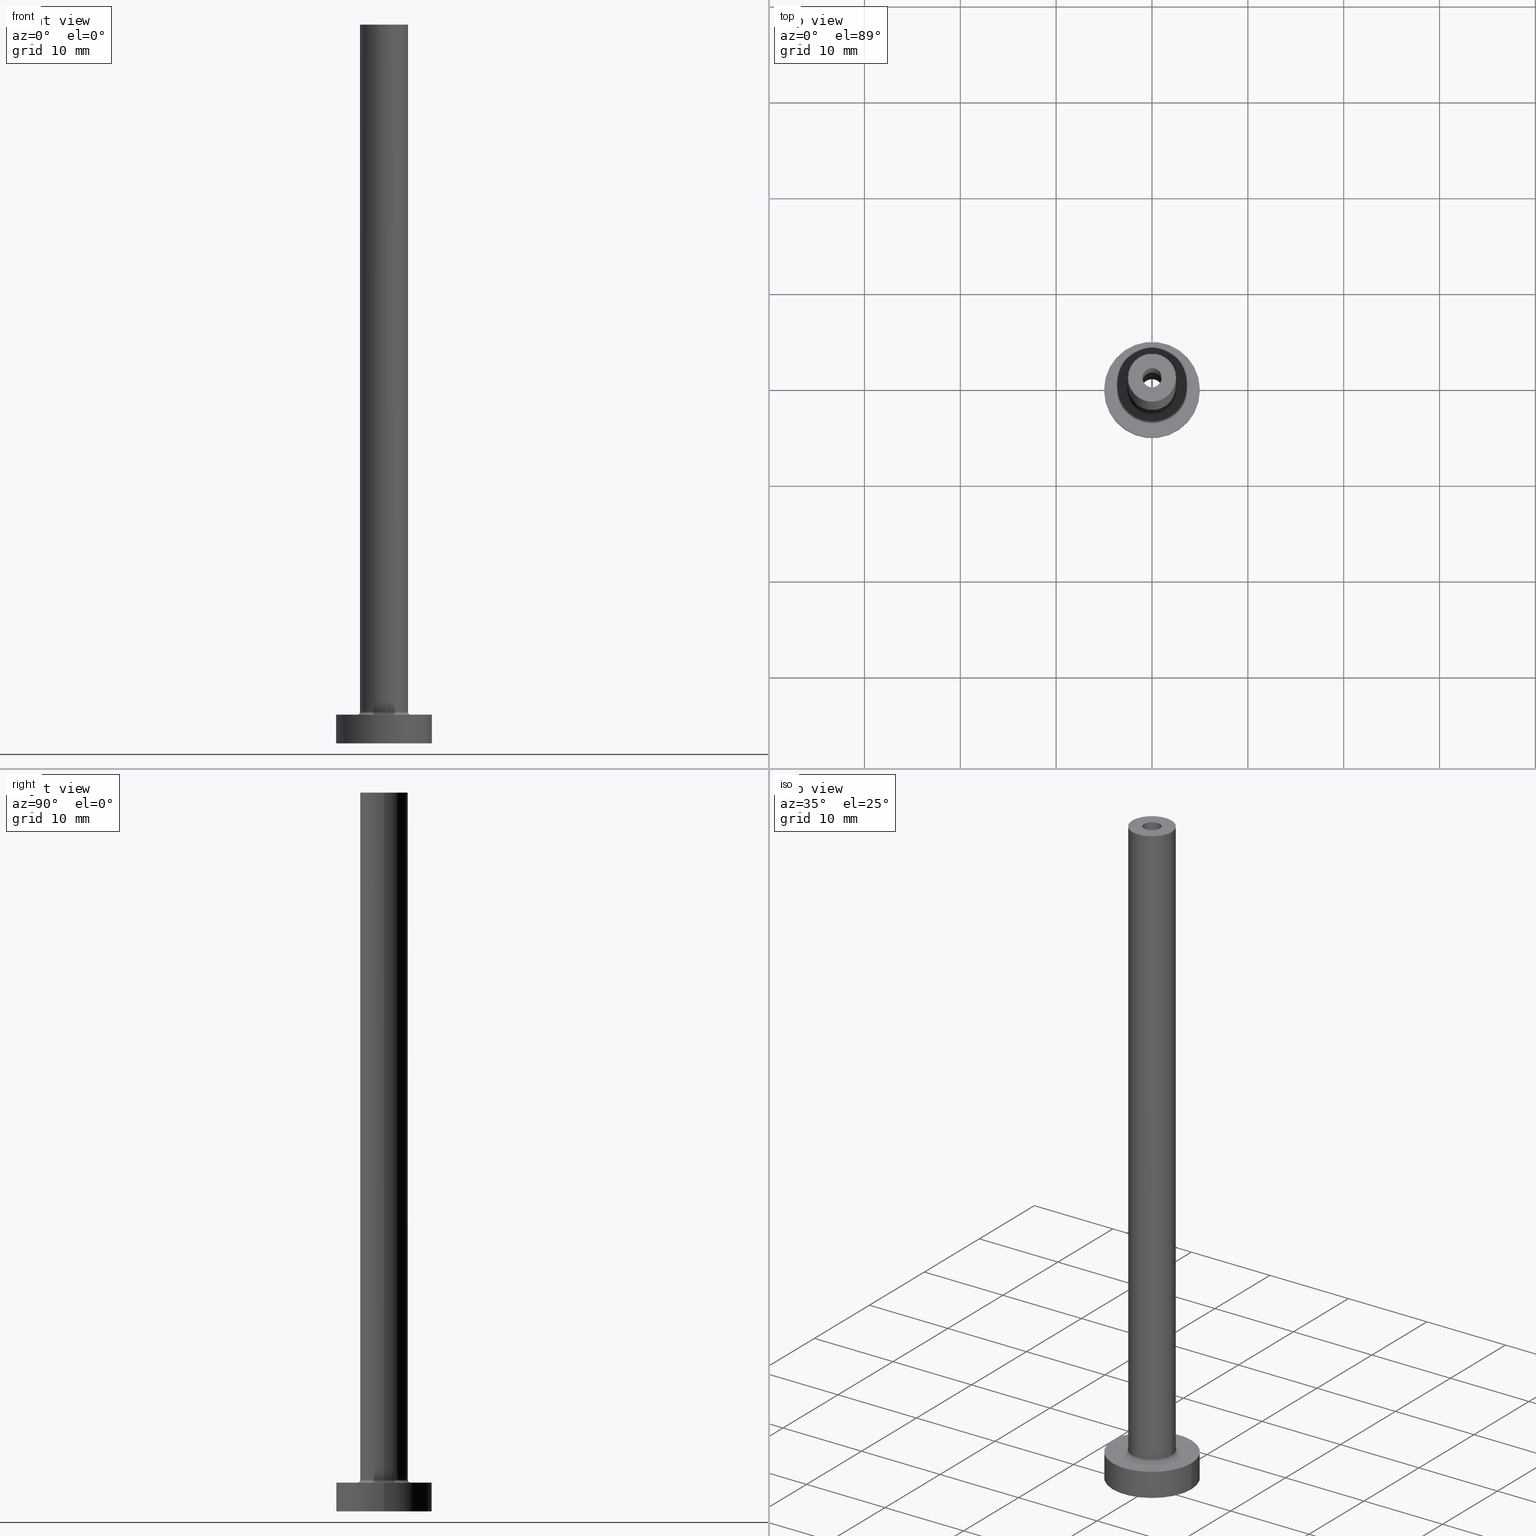
[diagram: canonical four-view strip — front | top / right | iso, engineering-drawing reading convention]
A machine part, canonical four-view strip (front | top / right | iso — engineering-drawing reading convention). The complete STEP part file that produces these views, byte-faithful:
ISO-10303-21;
HEADER;
FILE_DESCRIPTION (( 'STEP AP203' ),
    '1' );
FILE_NAME ('5a0d.STEP',
    '2025-12-03T11:45:13',
    ( '' ),
    ( '' ),
    'SwSTEP 2.0',
    'SolidWorks 2019',
    '' );
FILE_SCHEMA (( 'CONFIG_CONTROL_DESIGN' ));
ENDSEC;

DATA;
#1 = CARTESIAN_POINT ( 'NONE',  ( 0.000000000000000000, 0.000000000000000000, 40.00000000000000711 ) ) ;
#2 = AXIS2_PLACEMENT_3D ( 'NONE', #52, #61, #337 ) ;
#3 = CIRCLE ( 'NONE', #13, 2.500000000000000000 ) ;
#4 = CARTESIAN_POINT ( 'NONE',  ( 0.000000000000000000, 0.000000000000000000, 3.000000000000000000 ) ) ;
#5 = MANIFOLD_SOLID_BREP ( 'Odebrat vysunut�m4', #413 ) ;
#6 = CARTESIAN_POINT ( 'NONE',  ( -2.500000000000000000, 0.000000000000000000, 3.299999999999997158 ) ) ;
#7 = VERTEX_POINT ( 'NONE', #435 ) ;
#8 = DIRECTION ( 'NONE',  ( -0.000000000000000000, -0.000000000000000000, -1.000000000000000000 ) ) ;
#9 = VERTEX_POINT ( 'NONE', #10 ) ;
#10 = CARTESIAN_POINT ( 'NONE',  ( 5.000000000000000000, 6.123233995736766282E-16, 0.000000000000000000 ) ) ;
#11 = PRODUCT_RELATED_PRODUCT_CATEGORY ( 'detail', '', ( #142 ) ) ;
#12 = AXIS2_PLACEMENT_3D ( 'NONE', #94, #305, #438 ) ;
#13 = AXIS2_PLACEMENT_3D ( 'NONE', #141, #461, #257 ) ;
#14 = ORIENTED_EDGE ( 'NONE', *, *, #30, .T. ) ;
#15 = VERTEX_POINT ( 'NONE', #6 ) ;
#16 = APPLICATION_CONTEXT ( 'configuration controlled 3d designs of mechanical parts and assemblies' ) ;
#17 = PERSON_AND_ORGANIZATION ( #76, #425 ) ;
#18 = FACE_OUTER_BOUND ( 'NONE', #126, .T. ) ;
#19 = EDGE_LOOP ( 'NONE', ( #370, #190 ) ) ;
#20 = PERSON_AND_ORGANIZATION_ROLE ( 'creator' ) ;
#21 = CYLINDRICAL_SURFACE ( 'NONE', #265, 1.000000000000000000 ) ;
#22 = DATE_TIME_ROLE ( 'creation_date' ) ;
#23 = FACE_OUTER_BOUND ( 'NONE', #371, .T. ) ;
#24 = CALENDAR_DATE ( 2025, 3, 12 ) ;
#25 = DIRECTION ( 'NONE',  ( -0.000000000000000000, -0.000000000000000000, -1.000000000000000000 ) ) ;
#26 = CARTESIAN_POINT ( 'NONE',  ( 1.149999999999999911, 1.408343819019456028E-16, 43.25269119345811930 ) ) ;
#27 = LINE ( 'NONE', #377, #97 ) ;
#28 = AXIS2_PLACEMENT_3D ( 'NONE', #404, #204, #441 ) ;
#29 = CC_DESIGN_APPROVAL ( #310, ( #243 ) ) ;
#30 = EDGE_CURVE ( 'NONE', #228, #45, #106, .T. ) ;
#31 = CYLINDRICAL_SURFACE ( 'NONE', #113, 1.149999999999999911 ) ;
#32 = APPROVAL_ROLE ( '' ) ;
#33 = CARTESIAN_POINT ( 'NONE',  ( 0.000000000000000000, 0.000000000000000000, 3.000000000000000000 ) ) ;
#34 = ORIENTED_EDGE ( 'NONE', *, *, #375, .T. ) ;
#35 = FACE_OUTER_BOUND ( 'NONE', #86, .T. ) ;
#36 = VECTOR ( 'NONE', #166, 1000.000000000000000 ) ;
#37 = FACE_BOUND ( 'NONE', #365, .T. ) ;
#38 = CARTESIAN_POINT ( 'NONE',  ( -2.500000000000000000, 0.000000000000000000, 75.00000000000001421 ) ) ;
#39 = EDGE_CURVE ( 'NONE', #15, #352, #349, .T. ) ;
#40 = CARTESIAN_POINT ( 'NONE',  ( -1.000000000000000000, 0.000000000000000000, 75.00000000000001421 ) ) ;
#41 = ORIENTED_EDGE ( 'NONE', *, *, #115, .F. ) ;
#42 = EDGE_CURVE ( 'NONE', #352, #15, #210, .T. ) ;
#43 = CARTESIAN_POINT ( 'NONE',  ( -5.000000000000000000, 0.000000000000000000, 0.000000000000000000 ) ) ;
#44 = VERTEX_POINT ( 'NONE', #443 ) ;
#45 = VERTEX_POINT ( 'NONE', #409 ) ;
#46 = EDGE_LOOP ( 'NONE', ( #14, #34 ) ) ;
#47 = ORIENTED_EDGE ( 'NONE', *, *, #453, .F. ) ;
#48 = AXIS2_PLACEMENT_3D ( 'NONE', #71, #249, #354 ) ;
#49 = EDGE_LOOP ( 'NONE', ( #189, #335 ) ) ;
#50 = ORIENTED_EDGE ( 'NONE', *, *, #450, .F. ) ;
#51 = DATE_AND_TIME ( #205, #396 ) ;
#52 = CARTESIAN_POINT ( 'NONE',  ( 0.000000000000000000, 0.000000000000000000, 40.00000000000000711 ) ) ;
#53 = DIRECTION ( 'NONE',  ( 0.000000000000000000, 0.000000000000000000, 1.000000000000000000 ) ) ;
#54 = CARTESIAN_POINT ( 'NONE',  ( 0.000000000000000000, 0.000000000000000000, 75.00000000000001421 ) ) ;
#55 = PERSON_AND_ORGANIZATION ( #76, #425 ) ;
#56 = AXIS2_PLACEMENT_3D ( 'NONE', #54, #376, #380 ) ;
#57 = LINE ( 'NONE', #348, #412 ) ;
#58 = EDGE_LOOP ( 'NONE', ( #460, #186, #78, #399 ) ) ;
#59 = AXIS2_PLACEMENT_3D ( 'NONE', #114, #259, #427 ) ;
#60 = COORDINATED_UNIVERSAL_TIME_OFFSET ( 1, 0, .AHEAD. ) ;
#61 = DIRECTION ( 'NONE',  ( 0.000000000000000000, 0.000000000000000000, 1.000000000000000000 ) ) ;
#62 = COORDINATED_UNIVERSAL_TIME_OFFSET ( 1, 0, .AHEAD. ) ;
#63 = FACE_BOUND ( 'NONE', #230, .T. ) ;
#64 = EDGE_CURVE ( 'NONE', #264, #430, #299, .T. ) ;
#65 = CARTESIAN_POINT ( 'NONE',  ( 0.000000000000000000, 0.000000000000000000, 3.299999999999997158 ) ) ;
#66 = AXIS2_PLACEMENT_3D ( 'NONE', #319, #68, #290 ) ;
#67 = AXIS2_PLACEMENT_3D ( 'NONE', #188, #294, #291 ) ;
#68 = DIRECTION ( 'NONE',  ( 0.000000000000000000, 0.000000000000000000, -1.000000000000000000 ) ) ;
#69 = DATE_TIME_ROLE ( 'classification_date' ) ;
#70 = ORIENTED_EDGE ( 'NONE', *, *, #162, .T. ) ;
#71 = CARTESIAN_POINT ( 'NONE',  ( 0.000000000000000000, 0.000000000000000000, 3.000000000000000000 ) ) ;
#72 = DIRECTION ( 'NONE',  ( 1.000000000000000000, 0.000000000000000000, -0.000000000000000000 ) ) ;
#73 = ADVANCED_FACE ( 'NONE', ( #282 ), #201, .T. ) ;
#74 = CIRCLE ( 'NONE', #28, 2.500000000000000000 ) ;
#75 = DIRECTION ( 'NONE',  ( 0.000000000000000000, -1.000000000000000000, 0.000000000000000000 ) ) ;
#76 = PERSON ( 'NEUR�EN�', 'NEUR�EN�', 'NEUR�EN�', ('NEUR�EN�'), ('NEUR�EN�'), ('NEUR�EN�') ) ;
#77 = CARTESIAN_POINT ( 'NONE',  ( 0.000000000000000000, 0.000000000000000000, 75.00000000000001421 ) ) ;
#78 = ORIENTED_EDGE ( 'NONE', *, *, #42, .T. ) ;
#79 = EDGE_CURVE ( 'NONE', #228, #391, #314, .T. ) ;
#80 = CARTESIAN_POINT ( 'NONE',  ( 1.149999999999999911, 1.408343819019456028E-16, 0.000000000000000000 ) ) ;
#81 = ORIENTED_EDGE ( 'NONE', *, *, #132, .F. ) ;
#82 = AXIS2_PLACEMENT_3D ( 'NONE', #261, #312, #308 ) ;
#83 =( GEOMETRIC_REPRESENTATION_CONTEXT ( 3 ) GLOBAL_UNCERTAINTY_ASSIGNED_CONTEXT ( ( #437 ) ) GLOBAL_UNIT_ASSIGNED_CONTEXT ( ( #202, #442, #93 ) ) REPRESENTATION_CONTEXT ( 'NONE', 'WORKASPACE' ) );
#84 = DIRECTION ( 'NONE',  ( 1.000000000000000000, 0.000000000000000000, 0.000000000000000000 ) ) ;
#85 = EDGE_LOOP ( 'NONE', ( #366, #400, #164, #361 ) ) ;
#86 = EDGE_LOOP ( 'NONE', ( #184, #223, #120, #50 ) ) ;
#87 = ORIENTED_EDGE ( 'NONE', *, *, #30, .F. ) ;
#88 = EDGE_CURVE ( 'NONE', #253, #432, #234, .T. ) ;
#89 = PERSON_AND_ORGANIZATION ( #76, #425 ) ;
#90 = VECTOR ( 'NONE', #98, 1000.000000000000000 ) ;
#91 = DIRECTION ( 'NONE',  ( 1.000000000000000000, 0.000000000000000000, 0.000000000000000000 ) ) ;
#92 = ADVANCED_FACE ( 'NONE', ( #270 ), #21, .F. ) ;
#93 =( NAMED_UNIT ( * ) SI_UNIT ( $, .STERADIAN. ) SOLID_ANGLE_UNIT ( ) );
#94 = CARTESIAN_POINT ( 'NONE',  ( 0.000000000000000000, 0.000000000000000000, 3.000000000000000000 ) ) ;
#95 = DIRECTION ( 'NONE',  ( 0.000000000000000000, 0.000000000000000000, -1.000000000000000000 ) ) ;
#96 = PRODUCT_DEFINITION ( 'NEZN�M�', '', #243, #302 ) ;
#97 = VECTOR ( 'NONE', #346, 1000.000000000000000 ) ;
#98 = DIRECTION ( 'NONE',  ( -0.000000000000000000, -0.000000000000000000, -1.000000000000000000 ) ) ;
#99 = LOCAL_TIME ( 12, 45, 13.00000000000000000, #62 ) ;
#100 = PERSON_AND_ORGANIZATION_ROLE ( 'design_owner' ) ;
#101 = DIRECTION ( 'NONE',  ( -0.000000000000000000, -0.000000000000000000, -1.000000000000000000 ) ) ;
#102 = DATE_AND_TIME ( #455, #439 ) ;
#103 = ORIENTED_EDGE ( 'NONE', *, *, #375, .F. ) ;
#104 = CARTESIAN_POINT ( 'NONE',  ( 0.000000000000000000, 0.000000000000000000, 0.000000000000000000 ) ) ;
#105 = DIRECTION ( 'NONE',  ( 1.000000000000000000, 0.000000000000000000, 0.000000000000000000 ) ) ;
#106 = CIRCLE ( 'NONE', #227, 5.000000000000000000 ) ;
#107 = CARTESIAN_POINT ( 'NONE',  ( 0.000000000000000000, 0.000000000000000000, 3.000000000000000000 ) ) ;
#108 = COORDINATED_UNIVERSAL_TIME_OFFSET ( 1, 0, .AHEAD. ) ;
#109 = ORIENTED_EDGE ( 'NONE', *, *, #296, .T. ) ;
#110 = ADVANCED_FACE ( 'NONE', ( #63, #208 ), #245, .T. ) ;
#111 = DIRECTION ( 'NONE',  ( 1.000000000000000000, 0.000000000000000000, 0.000000000000000000 ) ) ;
#112 = CARTESIAN_POINT ( 'NONE',  ( 0.000000000000000000, 0.000000000000000000, 75.00000000000001421 ) ) ;
#113 = AXIS2_PLACEMENT_3D ( 'NONE', #422, #459, #382 ) ;
#114 = CARTESIAN_POINT ( 'NONE',  ( 0.000000000000000000, 0.000000000000000000, 3.299999999999997158 ) ) ;
#115 = EDGE_CURVE ( 'NONE', #159, #333, #27, .T. ) ;
#116 = DIRECTION ( 'NONE',  ( -0.000000000000000000, -0.000000000000000000, -1.000000000000000000 ) ) ;
#117 = DIRECTION ( 'NONE',  ( 1.000000000000000000, 0.000000000000000000, 0.000000000000000000 ) ) ;
#118 = ORIENTED_EDGE ( 'NONE', *, *, #127, .T. ) ;
#119 = DIRECTION ( 'NONE',  ( 1.000000000000000000, 0.000000000000000000, 0.000000000000000000 ) ) ;
#120 = ORIENTED_EDGE ( 'NONE', *, *, #88, .F. ) ;
#121 = AXIS2_PLACEMENT_3D ( 'NONE', #65, #386, #111 ) ;
#122 = EDGE_CURVE ( 'NONE', #15, #301, #272, .T. ) ;
#123 = AXIS2_PLACEMENT_3D ( 'NONE', #1, #263, #393 ) ;
#124 = ORIENTED_EDGE ( 'NONE', *, *, #42, .F. ) ;
#125 = EDGE_LOOP ( 'NONE', ( #194, #177 ) ) ;
#126 = EDGE_LOOP ( 'NONE', ( #103, #306, #191, #433 ) ) ;
#127 = EDGE_CURVE ( 'NONE', #333, #373, #146, .T. ) ;
#128 = CALENDAR_DATE ( 2025, 3, 12 ) ;
#129 = TOROIDAL_SURFACE ( 'NONE', #121, 2.799999999999999822, 0.2999999999999999889 ) ;
#130 = SECURITY_CLASSIFICATION ( '', '', #336 ) ;
#131 = LINE ( 'NONE', #406, #331 ) ;
#132 = EDGE_CURVE ( 'NONE', #264, #432, #57, .T. ) ;
#133 = COORDINATED_UNIVERSAL_TIME_OFFSET ( 1, 0, .AHEAD. ) ;
#134 = CARTESIAN_POINT ( 'NONE',  ( 0.000000000000000000, 0.000000000000000000, 40.00000000000000711 ) ) ;
#135 = DIRECTION ( 'NONE',  ( 1.000000000000000000, 0.000000000000000000, 0.000000000000000000 ) ) ;
#136 = LINE ( 'NONE', #444, #36 ) ;
#137 = CIRCLE ( 'NONE', #447, 2.799999999999999822 ) ;
#138 = AXIS2_PLACEMENT_3D ( 'NONE', #148, #317, #424 ) ;
#139 = DIRECTION ( 'NONE',  ( 0.000000000000000000, 0.000000000000000000, 1.000000000000000000 ) ) ;
#140 = APPROVAL_ROLE ( '' ) ;
#141 = CARTESIAN_POINT ( 'NONE',  ( 0.000000000000000000, 0.000000000000000000, 75.00000000000001421 ) ) ;
#142 = PRODUCT ( '5a0d', '5a0d', '', ( #200 ) ) ;
#143 = CARTESIAN_POINT ( 'NONE',  ( 0.000000000000000000, 0.000000000000000000, 40.00000000000000711 ) ) ;
#144 = EDGE_CURVE ( 'NONE', #44, #7, #74, .T. ) ;
#145 = SHAPE_DEFINITION_REPRESENTATION ( #417, #448 ) ;
#146 = CIRCLE ( 'NONE', #403, 1.149999999999999911 ) ;
#147 = DIRECTION ( 'NONE',  ( -0.000000000000000000, -0.000000000000000000, -1.000000000000000000 ) ) ;
#148 = CARTESIAN_POINT ( 'NONE',  ( 0.000000000000000000, 0.000000000000000000, 0.000000000000000000 ) ) ;
#149 = CARTESIAN_POINT ( 'NONE',  ( 1.149999999999999911, 1.408343819019456028E-16, 40.00000000000000711 ) ) ;
#150 = AXIS2_PLACEMENT_3D ( 'NONE', #134, #165, #91 ) ;
#151 = APPROVAL_PERSON_ORGANIZATION ( #278, #323, #338 ) ;
#152 = CARTESIAN_POINT ( 'NONE',  ( 1.000000000000000000, 1.224646799147353207E-16, 40.00000000000000711 ) ) ;
#153 = CARTESIAN_POINT ( 'NONE',  ( 0.000000000000000000, 0.000000000000000000, 3.000000000000000000 ) ) ;
#154 = CYLINDRICAL_SURFACE ( 'NONE', #378, 1.149999999999999911 ) ;
#155 = EDGE_LOOP ( 'NONE', ( #195, #330, #109, #215 ) ) ;
#156 = ADVANCED_FACE ( 'NONE', ( #344, #23 ), #167, .F. ) ;
#157 = EDGE_LOOP ( 'NONE', ( #47, #353, #297, #118 ) ) ;
#158 = AXIS2_PLACEMENT_3D ( 'NONE', #389, #75, #221 ) ;
#159 = VERTEX_POINT ( 'NONE', #309 ) ;
#160 = ORIENTED_EDGE ( 'NONE', *, *, #122, .F. ) ;
#161 = PERSON_AND_ORGANIZATION_ROLE ( 'classification_officer' ) ;
#162 = EDGE_CURVE ( 'NONE', #159, #408, #242, .T. ) ;
#163 = CYLINDRICAL_SURFACE ( 'NONE', #12, 5.000000000000000000 ) ;
#164 = ORIENTED_EDGE ( 'NONE', *, *, #359, .F. ) ;
#165 = DIRECTION ( 'NONE',  ( 0.000000000000000000, 0.000000000000000000, 1.000000000000000000 ) ) ;
#166 = DIRECTION ( 'NONE',  ( 0.000000000000000000, 0.000000000000000000, -1.000000000000000000 ) ) ;
#167 = PLANE ( 'NONE',  #219 ) ;
#168 = ADVANCED_FACE ( 'NONE', ( #18 ), #163, .T. ) ;
#169 = DATE_AND_TIME ( #24, #99 ) ;
#170 = DIRECTION ( 'NONE',  ( 0.000000000000000000, 0.000000000000000000, -1.000000000000000000 ) ) ;
#171 = DIRECTION ( 'NONE',  ( 1.000000000000000000, 0.000000000000000000, 0.000000000000000000 ) ) ;
#172 = CIRCLE ( 'NONE', #363, 2.799999999999999822 ) ;
#173 = CARTESIAN_POINT ( 'NONE',  ( 0.000000000000000000, 0.000000000000000000, 40.00000000000000711 ) ) ;
#174 = DIRECTION ( 'NONE',  ( 0.000000000000000000, 0.000000000000000000, 1.000000000000000000 ) ) ;
#175 = DIRECTION ( 'NONE',  ( -1.000000000000000000, 0.000000000000000000, 0.000000000000000000 ) ) ;
#176 = EDGE_CURVE ( 'NONE', #7, #352, #131, .T. ) ;
#177 = ORIENTED_EDGE ( 'NONE', *, *, #320, .T. ) ;
#178 = CYLINDRICAL_SURFACE ( 'NONE', #292, 5.000000000000000000 ) ;
#179 = TOROIDAL_SURFACE ( 'NONE', #59, 2.799999999999999822, 0.2999999999999999889 ) ;
#180 = DIRECTION ( 'NONE',  ( 1.000000000000000000, 0.000000000000000000, 0.000000000000000000 ) ) ;
#181 = PERSON_AND_ORGANIZATION ( #76, #425 ) ;
#182 = DIRECTION ( 'NONE',  ( -0.000000000000000000, -0.000000000000000000, -1.000000000000000000 ) ) ;
#183 = DIRECTION ( 'NONE',  ( -0.000000000000000000, -0.000000000000000000, -1.000000000000000000 ) ) ;
#184 = ORIENTED_EDGE ( 'NONE', *, *, #262, .T. ) ;
#185 = AXIS2_PLACEMENT_3D ( 'NONE', #104, #147, #423 ) ;
#186 = ORIENTED_EDGE ( 'NONE', *, *, #176, .T. ) ;
#187 = LOCAL_TIME ( 12, 45, 13.00000000000000000, #304 ) ;
#188 = CARTESIAN_POINT ( 'NONE',  ( 0.000000000000000000, 0.000000000000000000, 0.000000000000000000 ) ) ;
#189 = ORIENTED_EDGE ( 'NONE', *, *, #127, .F. ) ;
#190 = ORIENTED_EDGE ( 'NONE', *, *, #284, .T. ) ;
#191 = ORIENTED_EDGE ( 'NONE', *, *, #289, .T. ) ;
#192 = EDGE_CURVE ( 'NONE', #301, #303, #137, .T. ) ;
#193 = CIRCLE ( 'NONE', #211, 1.000000000000000000 ) ;
#194 = ORIENTED_EDGE ( 'NONE', *, *, #88, .T. ) ;
#195 = ORIENTED_EDGE ( 'NONE', *, *, #176, .F. ) ;
#196 = PERSON_AND_ORGANIZATION_ROLE ( 'creator' ) ;
#197 = ADVANCED_FACE ( 'NONE', ( #255 ), #178, .T. ) ;
#198 = DIRECTION ( 'NONE',  ( -1.000000000000000000, 1.224646799147353207E-16, 0.000000000000000000 ) ) ;
#199 = ORIENTED_EDGE ( 'NONE', *, *, #192, .F. ) ;
#200 = MECHANICAL_CONTEXT ( 'NONE', #16, 'mechanical' ) ;
#201 = CYLINDRICAL_SURFACE ( 'NONE', #340, 2.500000000000000000 ) ;
#202 =( LENGTH_UNIT ( ) NAMED_UNIT ( * ) SI_UNIT ( .MILLI., .METRE. ) );
#203 = CC_DESIGN_APPROVAL ( #286, ( #130 ) ) ;
#204 = DIRECTION ( 'NONE',  ( 0.000000000000000000, 0.000000000000000000, 1.000000000000000000 ) ) ;
#205 = CALENDAR_DATE ( 2025, 3, 12 ) ;
#206 = CARTESIAN_POINT ( 'NONE',  ( -2.799999999999999822, 3.429011037612588783E-16, 3.299999999999997158 ) ) ;
#207 = DIRECTION ( 'NONE',  ( -1.000000000000000000, 0.000000000000000000, 0.000000000000000000 ) ) ;
#208 = FACE_OUTER_BOUND ( 'NONE', #19, .T. ) ;
#209 = ADVANCED_FACE ( 'NONE', ( #37, #419 ), #216, .T. ) ;
#210 = CIRCLE ( 'NONE', #383, 2.500000000000000000 ) ;
#211 = AXIS2_PLACEMENT_3D ( 'NONE', #143, #285, #105 ) ;
#212 = DIRECTION ( 'NONE',  ( -0.000000000000000000, -0.000000000000000000, -1.000000000000000000 ) ) ;
#213 = ADVANCED_FACE ( 'NONE', ( #35 ), #217, .F. ) ;
#214 = LINE ( 'NONE', #351, #307 ) ;
#215 = ORIENTED_EDGE ( 'NONE', *, *, #39, .T. ) ;
#216 = PLANE ( 'NONE',  #48 ) ;
#217 = CYLINDRICAL_SURFACE ( 'NONE', #66, 1.000000000000000000 ) ;
#218 = AXIS2_PLACEMENT_3D ( 'NONE', #279, #139, #411 ) ;
#219 = AXIS2_PLACEMENT_3D ( 'NONE', #173, #339, #372 ) ;
#220 = AXIS2_PLACEMENT_3D ( 'NONE', #395, #360, #84 ) ;
#221 = DIRECTION ( 'NONE',  ( 0.000000000000000000, 0.000000000000000000, -1.000000000000000000 ) ) ;
#222 = DIRECTION ( 'NONE',  ( -1.000000000000000000, 0.000000000000000000, 0.000000000000000000 ) ) ;
#223 = ORIENTED_EDGE ( 'NONE', *, *, #132, .T. ) ;
#224 = ADVANCED_FACE ( 'NONE', ( #350 ), #129, .F. ) ;
#225 = CARTESIAN_POINT ( 'NONE',  ( -1.149999999999999911, 0.000000000000000000, 0.000000000000000000 ) ) ;
#226 = ORIENTED_EDGE ( 'NONE', *, *, #415, .F. ) ;
#227 = AXIS2_PLACEMENT_3D ( 'NONE', #153, #295, #117 ) ;
#228 = VERTEX_POINT ( 'NONE', #287 ) ;
#229 = CC_DESIGN_PERSON_AND_ORGANIZATION_ASSIGNMENT ( #347, #313, ( #243 ) ) ;
#230 = EDGE_LOOP ( 'NONE', ( #367, #248 ) ) ;
#231 = EDGE_LOOP ( 'NONE', ( #81, #327, #233, #456 ) ) ;
#232 = ADVANCED_FACE ( 'NONE', ( #324 ), #31, .F. ) ;
#233 = ORIENTED_EDGE ( 'NONE', *, *, #450, .T. ) ;
#234 = CIRCLE ( 'NONE', #150, 1.000000000000000000 ) ;
#235 = CC_DESIGN_APPROVAL ( #323, ( #96 ) ) ;
#236 = APPLICATION_PROTOCOL_DEFINITION ( 'international standard', 'config_control_design', 1994, #454 ) ;
#237 = DIRECTION ( 'NONE',  ( 1.000000000000000000, 0.000000000000000000, 0.000000000000000000 ) ) ;
#238 = DIRECTION ( 'NONE',  ( 1.224646799147353207E-16, 1.000000000000000000, -0.000000000000000000 ) ) ;
#239 = APPROVAL_DATE_TIME ( #51, #323 ) ;
#240 = ORIENTED_EDGE ( 'NONE', *, *, #453, .T. ) ;
#241 = DIRECTION ( 'NONE',  ( -1.000000000000000000, 0.000000000000000000, 0.000000000000000000 ) ) ;
#242 = CIRCLE ( 'NONE', #2, 1.149999999999999911 ) ;
#243 = PRODUCT_DEFINITION_FORMATION_WITH_SPECIFIED_SOURCE ( 'LIBOVOLN�', '', #142, .NOT_KNOWN. ) ;
#244 = EDGE_CURVE ( 'NONE', #373, #333, #369, .T. ) ;
#245 = PLANE ( 'NONE',  #56 ) ;
#246 = DIRECTION ( 'NONE',  ( -1.000000000000000000, 0.000000000000000000, 0.000000000000000000 ) ) ;
#247 = CC_DESIGN_DATE_AND_TIME_ASSIGNMENT ( #274, #69, ( #130 ) ) ;
#248 = ORIENTED_EDGE ( 'NONE', *, *, #64, .F. ) ;
#249 = DIRECTION ( 'NONE',  ( 0.000000000000000000, 0.000000000000000000, 1.000000000000000000 ) ) ;
#250 = ADVANCED_FACE ( 'NONE', ( #418, #256 ), #385, .F. ) ;
#251 = CC_DESIGN_SECURITY_CLASSIFICATION ( #130, ( #243 ) ) ;
#252 = CARTESIAN_POINT ( 'NONE',  ( 0.000000000000000000, 0.000000000000000000, 0.000000000000000000 ) ) ;
#253 = VERTEX_POINT ( 'NONE', #356 ) ;
#254 = ORIENTED_EDGE ( 'NONE', *, *, #359, .T. ) ;
#255 = FACE_OUTER_BOUND ( 'NONE', #364, .T. ) ;
#256 = FACE_OUTER_BOUND ( 'NONE', #397, .T. ) ;
#257 = DIRECTION ( 'NONE',  ( 1.000000000000000000, 0.000000000000000000, 0.000000000000000000 ) ) ;
#258 = VECTOR ( 'NONE', #374, 1000.000000000000000 ) ;
#259 = DIRECTION ( 'NONE',  ( 0.000000000000000000, 0.000000000000000000, 1.000000000000000000 ) ) ;
#260 = DIRECTION ( 'NONE',  ( 0.000000000000000000, 0.000000000000000000, -1.000000000000000000 ) ) ;
#261 = CARTESIAN_POINT ( 'NONE',  ( 0.000000000000000000, 0.000000000000000000, 3.299999999999997158 ) ) ;
#262 = EDGE_CURVE ( 'NONE', #430, #264, #318, .T. ) ;
#263 = DIRECTION ( 'NONE',  ( 0.000000000000000000, 0.000000000000000000, 1.000000000000000000 ) ) ;
#264 = VERTEX_POINT ( 'NONE', #321 ) ;
#265 = AXIS2_PLACEMENT_3D ( 'NONE', #277, #95, #241 ) ;
#266 = CC_DESIGN_PERSON_AND_ORGANIZATION_ASSIGNMENT ( #17, #161, ( #130 ) ) ;
#267 = ORIENTED_EDGE ( 'NONE', *, *, #325, .F. ) ;
#268 = ORIENTED_EDGE ( 'NONE', *, *, #162, .F. ) ;
#269 = ORIENTED_EDGE ( 'NONE', *, *, #192, .T. ) ;
#270 = FACE_OUTER_BOUND ( 'NONE', #231, .T. ) ;
#271 = ORIENTED_EDGE ( 'NONE', *, *, #293, .T. ) ;
#272 = CIRCLE ( 'NONE', #355, 0.2999999999999999334 ) ;
#273 = CIRCLE ( 'NONE', #67, 5.000000000000000000 ) ;
#274 = DATE_AND_TIME ( #128, #187 ) ;
#275 = CARTESIAN_POINT ( 'NONE',  ( 0.000000000000000000, 0.000000000000000000, 0.000000000000000000 ) ) ;
#276 = DATE_AND_TIME ( #342, #421 ) ;
#277 = CARTESIAN_POINT ( 'NONE',  ( 0.000000000000000000, 0.000000000000000000, 75.00000000000001421 ) ) ;
#278 = PERSON_AND_ORGANIZATION ( #76, #425 ) ;
#279 = CARTESIAN_POINT ( 'NONE',  ( 0.000000000000000000, 0.000000000000000000, 75.00000000000001421 ) ) ;
#280 = CIRCLE ( 'NONE', #158, 0.2999999999999999334 ) ;
#281 = AXIS2_PLACEMENT_3D ( 'NONE', #112, #174, #180 ) ;
#282 = FACE_OUTER_BOUND ( 'NONE', #155, .T. ) ;
#283 = DIRECTION ( 'NONE',  ( -0.000000000000000000, -0.000000000000000000, -1.000000000000000000 ) ) ;
#284 = EDGE_CURVE ( 'NONE', #7, #44, #3, .T. ) ;
#285 = DIRECTION ( 'NONE',  ( 0.000000000000000000, 0.000000000000000000, 1.000000000000000000 ) ) ;
#286 = APPROVAL ( #315, 'NEUR�EN�' ) ;
#287 = CARTESIAN_POINT ( 'NONE',  ( -5.000000000000000000, 0.000000000000000000, 3.000000000000000000 ) ) ;
#288 = DIRECTION ( 'NONE',  ( 1.000000000000000000, 0.000000000000000000, 0.000000000000000000 ) ) ;
#289 = EDGE_CURVE ( 'NONE', #9, #391, #341, .T. ) ;
#290 = DIRECTION ( 'NONE',  ( -1.000000000000000000, 0.000000000000000000, 0.000000000000000000 ) ) ;
#291 = DIRECTION ( 'NONE',  ( 1.000000000000000000, 0.000000000000000000, 0.000000000000000000 ) ) ;
#292 = AXIS2_PLACEMENT_3D ( 'NONE', #33, #212, #175 ) ;
#293 = EDGE_CURVE ( 'NONE', #352, #303, #280, .T. ) ;
#294 = DIRECTION ( 'NONE',  ( 0.000000000000000000, 0.000000000000000000, 1.000000000000000000 ) ) ;
#295 = DIRECTION ( 'NONE',  ( 0.000000000000000000, 0.000000000000000000, 1.000000000000000000 ) ) ;
#296 = EDGE_CURVE ( 'NONE', #44, #15, #358, .T. ) ;
#297 = ORIENTED_EDGE ( 'NONE', *, *, #115, .T. ) ;
#298 = ORIENTED_EDGE ( 'NONE', *, *, #289, .F. ) ;
#299 = CIRCLE ( 'NONE', #218, 1.000000000000000000 ) ;
#300 = APPROVAL_PERSON_ORGANIZATION ( #345, #310, #140 ) ;
#301 = VERTEX_POINT ( 'NONE', #316 ) ;
#302 = DESIGN_CONTEXT ( 'detailed design', #454, 'design' ) ;
#303 = VERTEX_POINT ( 'NONE', #452 ) ;
#304 = COORDINATED_UNIVERSAL_TIME_OFFSET ( 1, 0, .AHEAD. ) ;
#305 = DIRECTION ( 'NONE',  ( -0.000000000000000000, -0.000000000000000000, -1.000000000000000000 ) ) ;
#306 = ORIENTED_EDGE ( 'NONE', *, *, #325, .T. ) ;
#307 = VECTOR ( 'NONE', #183, 1000.000000000000000 ) ;
#308 = DIRECTION ( 'NONE',  ( 1.000000000000000000, 0.000000000000000000, 0.000000000000000000 ) ) ;
#309 = CARTESIAN_POINT ( 'NONE',  ( -1.149999999999999911, 0.000000000000000000, 40.00000000000000711 ) ) ;
#310 = APPROVAL ( #410, 'NEUR�EN�' ) ;
#311 = APPROVAL_DATE_TIME ( #169, #310 ) ;
#312 = DIRECTION ( 'NONE',  ( 0.000000000000000000, 0.000000000000000000, 1.000000000000000000 ) ) ;
#313 = PERSON_AND_ORGANIZATION_ROLE ( 'design_supplier' ) ;
#314 = LINE ( 'NONE', #451, #90 ) ;
#315 = APPROVAL_STATUS ( 'not_yet_approved' ) ;
#316 = CARTESIAN_POINT ( 'NONE',  ( -2.799999999999999822, 3.429011037612589276E-16, 2.999999999999998668 ) ) ;
#317 = DIRECTION ( 'NONE',  ( 0.000000000000000000, 0.000000000000000000, 1.000000000000000000 ) ) ;
#318 = CIRCLE ( 'NONE', #281, 1.000000000000000000 ) ;
#319 = CARTESIAN_POINT ( 'NONE',  ( 0.000000000000000000, 0.000000000000000000, 75.00000000000001421 ) ) ;
#320 = EDGE_CURVE ( 'NONE', #432, #253, #193, .T. ) ;
#321 = CARTESIAN_POINT ( 'NONE',  ( 1.000000000000000000, 1.224646799147353207E-16, 75.00000000000001421 ) ) ;
#322 = APPROVAL_DATE_TIME ( #102, #286 ) ;
#323 = APPROVAL ( #402, 'NEUR�EN�' ) ;
#324 = FACE_OUTER_BOUND ( 'NONE', #394, .T. ) ;
#325 = EDGE_CURVE ( 'NONE', #45, #9, #214, .T. ) ;
#326 = CARTESIAN_POINT ( 'NONE',  ( 2.500000000000000000, 3.061616997868383141E-16, 3.299999999999997158 ) ) ;
#327 = ORIENTED_EDGE ( 'NONE', *, *, #64, .T. ) ;
#328 = FACE_OUTER_BOUND ( 'NONE', #343, .T. ) ;
#329 = ORIENTED_EDGE ( 'NONE', *, *, #244, .T. ) ;
#330 = ORIENTED_EDGE ( 'NONE', *, *, #144, .F. ) ;
#331 = VECTOR ( 'NONE', #457, 1000.000000000000000 ) ;
#332 = ORIENTED_EDGE ( 'NONE', *, *, #415, .T. ) ;
#333 = VERTEX_POINT ( 'NONE', #225 ) ;
#334 = AXIS2_PLACEMENT_3D ( 'NONE', #252, #387, #72 ) ;
#335 = ORIENTED_EDGE ( 'NONE', *, *, #244, .F. ) ;
#336 = SECURITY_CLASSIFICATION_LEVEL ( 'unclassified' ) ;
#337 = DIRECTION ( 'NONE',  ( 1.000000000000000000, 0.000000000000000000, 0.000000000000000000 ) ) ;
#338 = APPROVAL_ROLE ( '' ) ;
#339 = DIRECTION ( 'NONE',  ( 0.000000000000000000, 0.000000000000000000, 1.000000000000000000 ) ) ;
#340 = AXIS2_PLACEMENT_3D ( 'NONE', #416, #101, #246 ) ;
#341 = CIRCLE ( 'NONE', #138, 5.000000000000000000 ) ;
#342 = CALENDAR_DATE ( 2025, 3, 12 ) ;
#343 = EDGE_LOOP ( 'NONE', ( #160, #124, #271, #199 ) ) ;
#344 = FACE_BOUND ( 'NONE', #125, .T. ) ;
#345 = PERSON_AND_ORGANIZATION ( #76, #425 ) ;
#346 = DIRECTION ( 'NONE',  ( 0.000000000000000000, 0.000000000000000000, -1.000000000000000000 ) ) ;
#347 = PERSON_AND_ORGANIZATION ( #76, #425 ) ;
#348 = CARTESIAN_POINT ( 'NONE',  ( 1.000000000000000000, 1.224646799147353207E-16, 75.00000000000001421 ) ) ;
#349 = CIRCLE ( 'NONE', #82, 2.500000000000000000 ) ;
#350 = FACE_OUTER_BOUND ( 'NONE', #85, .T. ) ;
#351 = CARTESIAN_POINT ( 'NONE',  ( 5.000000000000000000, 6.123233995736766282E-16, 3.000000000000000000 ) ) ;
#352 = VERTEX_POINT ( 'NONE', #326 ) ;
#353 = ORIENTED_EDGE ( 'NONE', *, *, #368, .T. ) ;
#354 = DIRECTION ( 'NONE',  ( 1.000000000000000000, 0.000000000000000000, -0.000000000000000000 ) ) ;
#355 = AXIS2_PLACEMENT_3D ( 'NONE', #206, #238, #198 ) ;
#356 = CARTESIAN_POINT ( 'NONE',  ( -1.000000000000000000, 0.000000000000000000, 40.00000000000000711 ) ) ;
#357 = CC_DESIGN_DATE_AND_TIME_ASSIGNMENT ( #276, #22, ( #96 ) ) ;
#358 = LINE ( 'NONE', #38, #414 ) ;
#359 = EDGE_CURVE ( 'NONE', #303, #301, #172, .T. ) ;
#360 = DIRECTION ( 'NONE',  ( 0.000000000000000000, 0.000000000000000000, 1.000000000000000000 ) ) ;
#361 = ORIENTED_EDGE ( 'NONE', *, *, #293, .F. ) ;
#362 = FACE_OUTER_BOUND ( 'NONE', #157, .T. ) ;
#363 = AXIS2_PLACEMENT_3D ( 'NONE', #4, #8, #119 ) ;
#364 = EDGE_LOOP ( 'NONE', ( #267, #87, #401, #332 ) ) ;
#365 = EDGE_LOOP ( 'NONE', ( #254, #269 ) ) ;
#366 = ORIENTED_EDGE ( 'NONE', *, *, #39, .F. ) ;
#367 = ORIENTED_EDGE ( 'NONE', *, *, #262, .F. ) ;
#368 = EDGE_CURVE ( 'NONE', #408, #159, #388, .T. ) ;
#369 = CIRCLE ( 'NONE', #185, 1.149999999999999911 ) ;
#370 = ORIENTED_EDGE ( 'NONE', *, *, #144, .T. ) ;
#371 = EDGE_LOOP ( 'NONE', ( #268, #428 ) ) ;
#372 = DIRECTION ( 'NONE',  ( 1.000000000000000000, 0.000000000000000000, -0.000000000000000000 ) ) ;
#373 = VERTEX_POINT ( 'NONE', #80 ) ;
#374 = DIRECTION ( 'NONE',  ( 0.000000000000000000, 0.000000000000000000, -1.000000000000000000 ) ) ;
#375 = EDGE_CURVE ( 'NONE', #45, #228, #405, .T. ) ;
#376 = DIRECTION ( 'NONE',  ( 0.000000000000000000, 0.000000000000000000, 1.000000000000000000 ) ) ;
#377 = CARTESIAN_POINT ( 'NONE',  ( -1.149999999999999911, 0.000000000000000000, 43.25269119345811930 ) ) ;
#378 = AXIS2_PLACEMENT_3D ( 'NONE', #429, #260, #222 ) ;
#379 = CARTESIAN_POINT ( 'NONE',  ( 0.000000000000000000, 0.000000000000000000, 0.000000000000000000 ) ) ;
#380 = DIRECTION ( 'NONE',  ( 1.000000000000000000, 0.000000000000000000, -0.000000000000000000 ) ) ;
#381 = DIRECTION ( 'NONE',  ( 0.000000000000000000, 0.000000000000000000, 1.000000000000000000 ) ) ;
#382 = DIRECTION ( 'NONE',  ( -1.000000000000000000, 0.000000000000000000, 0.000000000000000000 ) ) ;
#383 = AXIS2_PLACEMENT_3D ( 'NONE', #446, #381, #135 ) ;
#384 = APPROVAL_PERSON_ORGANIZATION ( #181, #286, #32 ) ;
#385 = PLANE ( 'NONE',  #334 ) ;
#386 = DIRECTION ( 'NONE',  ( 0.000000000000000000, 0.000000000000000000, 1.000000000000000000 ) ) ;
#387 = DIRECTION ( 'NONE',  ( 0.000000000000000000, 0.000000000000000000, 1.000000000000000000 ) ) ;
#388 = CIRCLE ( 'NONE', #123, 1.149999999999999911 ) ;
#389 = CARTESIAN_POINT ( 'NONE',  ( 2.799999999999999822, 0.000000000000000000, 3.299999999999997158 ) ) ;
#390 = CYLINDRICAL_SURFACE ( 'NONE', #449, 2.500000000000000000 ) ;
#391 = VERTEX_POINT ( 'NONE', #43 ) ;
#392 = CC_DESIGN_PERSON_AND_ORGANIZATION_ASSIGNMENT ( #440, #20, ( #96 ) ) ;
#393 = DIRECTION ( 'NONE',  ( 1.000000000000000000, 0.000000000000000000, 0.000000000000000000 ) ) ;
#394 = EDGE_LOOP ( 'NONE', ( #70, #240, #329, #41 ) ) ;
#395 = CARTESIAN_POINT ( 'NONE',  ( 0.000000000000000000, 0.000000000000000000, 3.000000000000000000 ) ) ;
#396 = LOCAL_TIME ( 12, 45, 13.00000000000000000, #60 ) ;
#397 = EDGE_LOOP ( 'NONE', ( #226, #298 ) ) ;
#398 = ADVANCED_FACE ( 'NONE', ( #362 ), #154, .F. ) ;
#399 = ORIENTED_EDGE ( 'NONE', *, *, #296, .F. ) ;
#400 = ORIENTED_EDGE ( 'NONE', *, *, #122, .T. ) ;
#401 = ORIENTED_EDGE ( 'NONE', *, *, #79, .T. ) ;
#402 = APPROVAL_STATUS ( 'not_yet_approved' ) ;
#403 = AXIS2_PLACEMENT_3D ( 'NONE', #275, #25, #237 ) ;
#404 = CARTESIAN_POINT ( 'NONE',  ( 0.000000000000000000, 0.000000000000000000, 75.00000000000001421 ) ) ;
#405 = CIRCLE ( 'NONE', #220, 5.000000000000000000 ) ;
#406 = CARTESIAN_POINT ( 'NONE',  ( 2.500000000000000000, 3.061616997868383141E-16, 75.00000000000001421 ) ) ;
#407 = LINE ( 'NONE', #26, #258 ) ;
#408 = VERTEX_POINT ( 'NONE', #149 ) ;
#409 = CARTESIAN_POINT ( 'NONE',  ( 5.000000000000000000, 6.123233995736766282E-16, 3.000000000000000000 ) ) ;
#410 = APPROVAL_STATUS ( 'not_yet_approved' ) ;
#411 = DIRECTION ( 'NONE',  ( 1.000000000000000000, 0.000000000000000000, 0.000000000000000000 ) ) ;
#412 = VECTOR ( 'NONE', #170, 1000.000000000000000 ) ;
#413 = CLOSED_SHELL ( 'NONE', ( #213, #232, #224, #445, #168, #197, #209, #250, #73, #110, #434, #398, #156, #92 ) ) ;
#414 = VECTOR ( 'NONE', #283, 1000.000000000000000 ) ;
#415 = EDGE_CURVE ( 'NONE', #391, #9, #273, .T. ) ;
#416 = CARTESIAN_POINT ( 'NONE',  ( 0.000000000000000000, 0.000000000000000000, 75.00000000000001421 ) ) ;
#417 = PRODUCT_DEFINITION_SHAPE ( 'NONE', 'NONE',  #96 ) ;
#418 = FACE_BOUND ( 'NONE', #49, .T. ) ;
#419 = FACE_OUTER_BOUND ( 'NONE', #46, .T. ) ;
#420 = CC_DESIGN_PERSON_AND_ORGANIZATION_ASSIGNMENT ( #55, #100, ( #142 ) ) ;
#421 = LOCAL_TIME ( 12, 45, 13.00000000000000000, #133 ) ;
#422 = CARTESIAN_POINT ( 'NONE',  ( 0.000000000000000000, 0.000000000000000000, 43.25269119345811930 ) ) ;
#423 = DIRECTION ( 'NONE',  ( 1.000000000000000000, 0.000000000000000000, 0.000000000000000000 ) ) ;
#424 = DIRECTION ( 'NONE',  ( 1.000000000000000000, 0.000000000000000000, 0.000000000000000000 ) ) ;
#425 = ORGANIZATION ( 'NEUR�EN�', 'NEUR�EN�', '' ) ;
#426 = FACE_OUTER_BOUND ( 'NONE', #58, .T. ) ;
#427 = DIRECTION ( 'NONE',  ( 1.000000000000000000, 0.000000000000000000, 0.000000000000000000 ) ) ;
#428 = ORIENTED_EDGE ( 'NONE', *, *, #368, .F. ) ;
#429 = CARTESIAN_POINT ( 'NONE',  ( 0.000000000000000000, 0.000000000000000000, 43.25269119345811930 ) ) ;
#430 = VERTEX_POINT ( 'NONE', #40 ) ;
#431 = AXIS2_PLACEMENT_3D ( 'NONE', #379, #53, #171 ) ;
#432 = VERTEX_POINT ( 'NONE', #152 ) ;
#433 = ORIENTED_EDGE ( 'NONE', *, *, #79, .F. ) ;
#434 = ADVANCED_FACE ( 'NONE', ( #328 ), #179, .F. ) ;
#435 = CARTESIAN_POINT ( 'NONE',  ( 2.500000000000000000, 3.061616997868383141E-16, 75.00000000000001421 ) ) ;
#436 = APPLICATION_PROTOCOL_DEFINITION ( 'international standard', 'config_control_design', 1994, #16 ) ;
#437 = UNCERTAINTY_MEASURE_WITH_UNIT (LENGTH_MEASURE( 1.000000000000000082E-05 ), #202, 'distance_accuracy_value', 'NONE');
#438 = DIRECTION ( 'NONE',  ( -1.000000000000000000, 0.000000000000000000, 0.000000000000000000 ) ) ;
#439 = LOCAL_TIME ( 12, 45, 13.00000000000000000, #108 ) ;
#440 = PERSON_AND_ORGANIZATION ( #76, #425 ) ;
#441 = DIRECTION ( 'NONE',  ( 1.000000000000000000, 0.000000000000000000, 0.000000000000000000 ) ) ;
#442 =( NAMED_UNIT ( * ) PLANE_ANGLE_UNIT ( ) SI_UNIT ( $, .RADIAN. ) );
#443 = CARTESIAN_POINT ( 'NONE',  ( -2.500000000000000000, 0.000000000000000000, 75.00000000000001421 ) ) ;
#444 = CARTESIAN_POINT ( 'NONE',  ( -1.000000000000000000, 0.000000000000000000, 75.00000000000001421 ) ) ;
#445 = ADVANCED_FACE ( 'NONE', ( #426 ), #390, .T. ) ;
#446 = CARTESIAN_POINT ( 'NONE',  ( 0.000000000000000000, 0.000000000000000000, 3.299999999999997158 ) ) ;
#447 = AXIS2_PLACEMENT_3D ( 'NONE', #107, #182, #288 ) ;
#448 = ADVANCED_BREP_SHAPE_REPRESENTATION ( '5a0d', ( #5, #431 ), #83 ) ;
#449 = AXIS2_PLACEMENT_3D ( 'NONE', #77, #116, #207 ) ;
#450 = EDGE_CURVE ( 'NONE', #430, #253, #136, .T. ) ;
#451 = CARTESIAN_POINT ( 'NONE',  ( -5.000000000000000000, 0.000000000000000000, 3.000000000000000000 ) ) ;
#452 = CARTESIAN_POINT ( 'NONE',  ( 2.799999999999999822, 0.000000000000000000, 2.999999999999998668 ) ) ;
#453 = EDGE_CURVE ( 'NONE', #408, #373, #407, .T. ) ;
#454 = APPLICATION_CONTEXT ( 'configuration controlled 3d designs of mechanical parts and assemblies' ) ;
#455 = CALENDAR_DATE ( 2025, 3, 12 ) ;
#456 = ORIENTED_EDGE ( 'NONE', *, *, #320, .F. ) ;
#457 = DIRECTION ( 'NONE',  ( -0.000000000000000000, -0.000000000000000000, -1.000000000000000000 ) ) ;
#458 = CC_DESIGN_PERSON_AND_ORGANIZATION_ASSIGNMENT ( #89, #196, ( #243 ) ) ;
#459 = DIRECTION ( 'NONE',  ( 0.000000000000000000, 0.000000000000000000, -1.000000000000000000 ) ) ;
#460 = ORIENTED_EDGE ( 'NONE', *, *, #284, .F. ) ;
#461 = DIRECTION ( 'NONE',  ( 0.000000000000000000, 0.000000000000000000, 1.000000000000000000 ) ) ;
ENDSEC;
END-ISO-10303-21;
